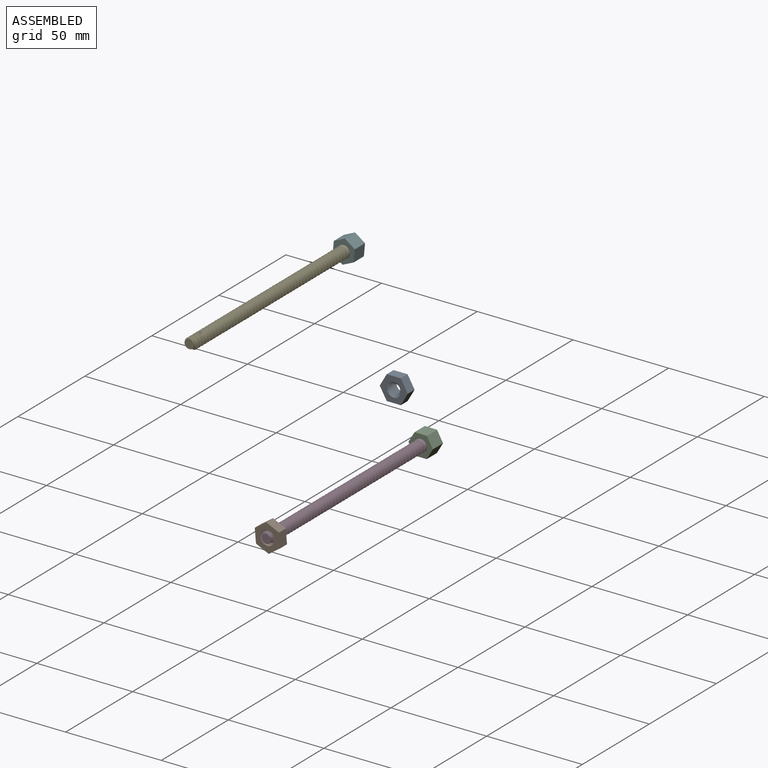
[diagram: assembled view]
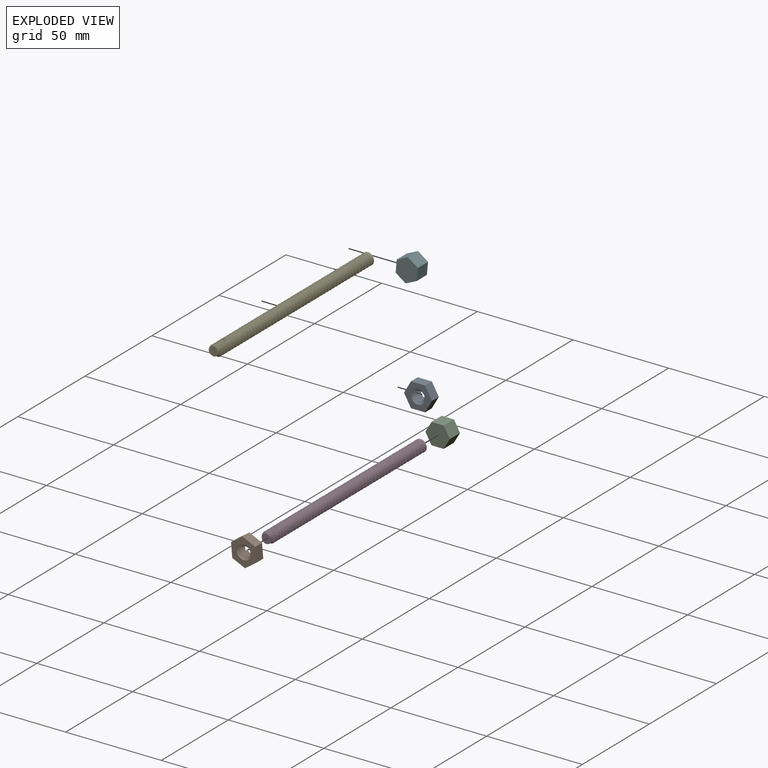
[diagram: exploded view]
GUIDED TOUR — MATED ASSEMBLY (Onshape document 5558fa52ef1e7a628afe3b0c, AutoMate assembly 5558fa52ef1e7a628afe3b0c_bb2a575c67ffff905aa52da0_493e388149c640339e13a3b0_default)

This assembly has 6 components, labeled P0..P5 below (a component is one placed occurrence of a part; the same part can appear more than once), held together by 3 mates. A mate is a constraint between two components; its type names the relative motion it leaves free:
  CYLINDRICAL — leaves both rotation about and translation along the listed axis free,
  FASTENED — locks the two components together rigidly (no relative motion).
Axis/direction vectors are unit vectors and 'through' points are millimeter coordinates, both in the assembly's world frame.

MATES
  1. CYLINDRICAL "Cylindrical 1": P3 <-> P1, axis (0.000, -1.000, 0.000) through (-28.22, -59.02, -57.03) mm
  2. FASTENED "Fastened 1": P2 <-> P3, direction (0.000, 1.000, 0.000) through (-28.22, 55.28, -57.03) mm
  3. FASTENED "Fastened 2": P4 <-> P5, direction (0.000, 1.000, 0.000) through (-10.07, -28.03, 71.27) mm

ASSEMBLY ORDER
  1. P1 — the base component [order verified]
  2. P3 [order verified]
  3. P4 [order verified]
  4. P5 [order verified]
  5. P0 [order verified]
  6. P2 [order verified]
(P3 verified with a relaxed clearance tolerance: the source model stores slight part interference there.)
Order-tag legend:
  [order verified] — this step's position reverses a verified removal order: the component was checked to insert without passing through the ones already placed.

Of the 6 components, 2 carry the full construction recipe — the FeatureScript program that regenerates the part's solid from scratch; the rest are supplied as boundary geometry only.
Each toured component is shown spotlighted twice — in the assembled view, then in the exploded view, where a leader line traces a displaced component back to its assembled socket (saturated green if recipe-attached, orange if geometry-only; every other component desaturated gray) — followed by its recipe or geometry summary and the mates that hold it.
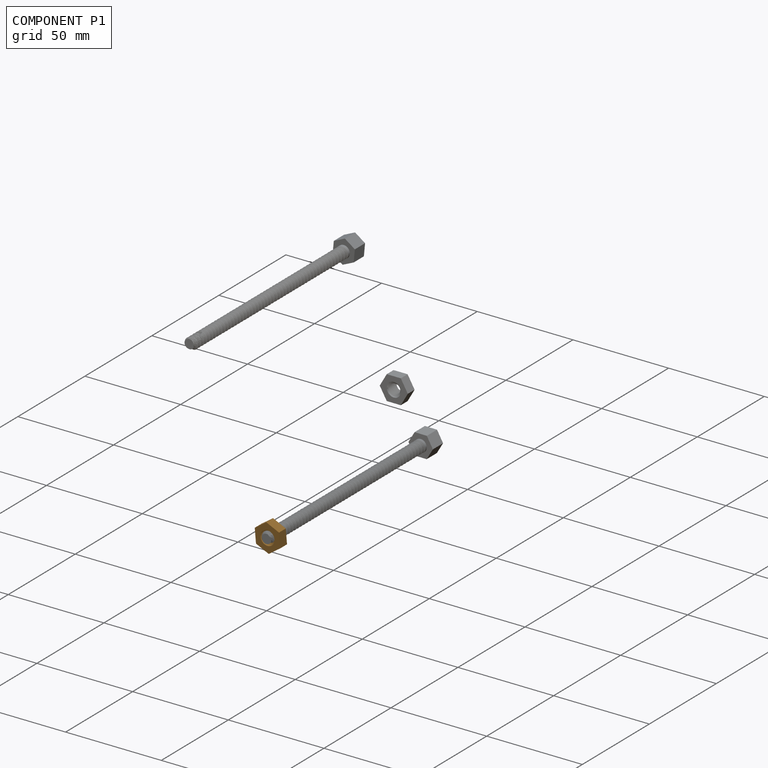
[diagram: component P1 — assembled]
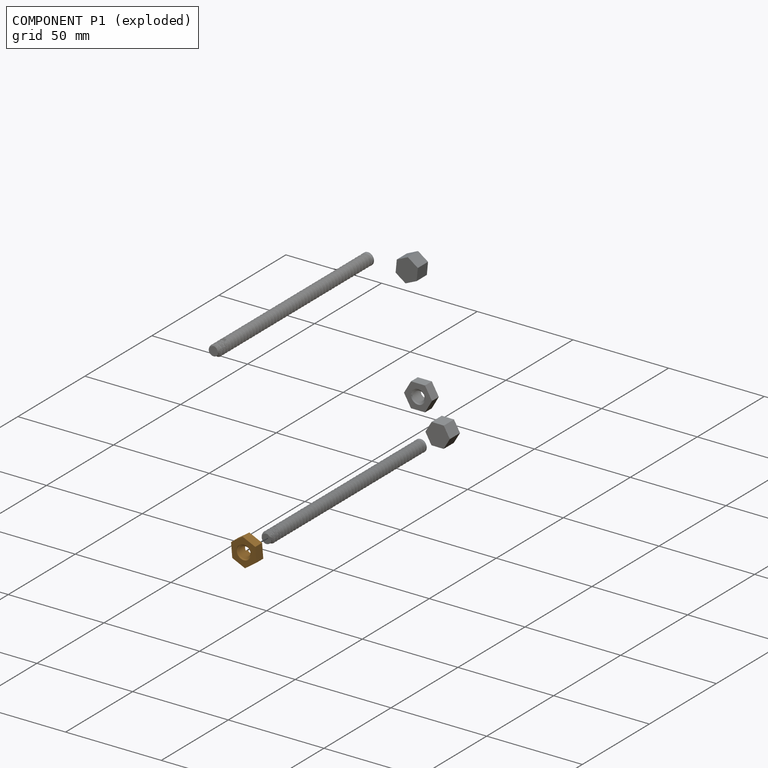
[diagram: component P1 — exploded]
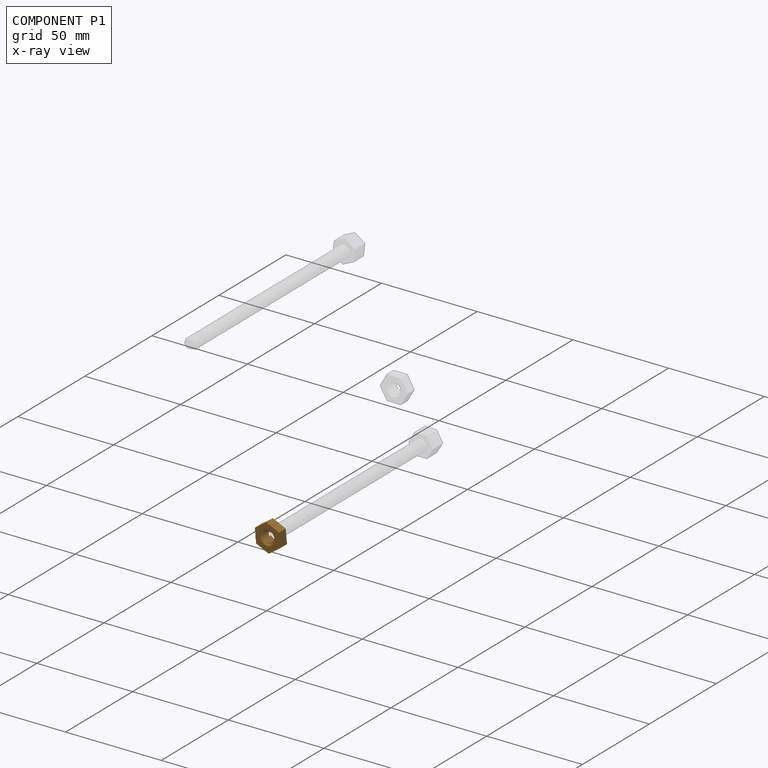
[diagram: component P1 — x-ray view]
COMPONENT P1 — geometry summary (no construction recipe available for this part):
  bounding box: 14.7 x 12.7 x 6.4 mm
  B-rep topology: 1 solid, 16 faces, 76 edges
  volume: 557 mm^3 (47% of its bounding box)
Held by: CYLINDRICAL mate "Cylindrical 1" to P3.
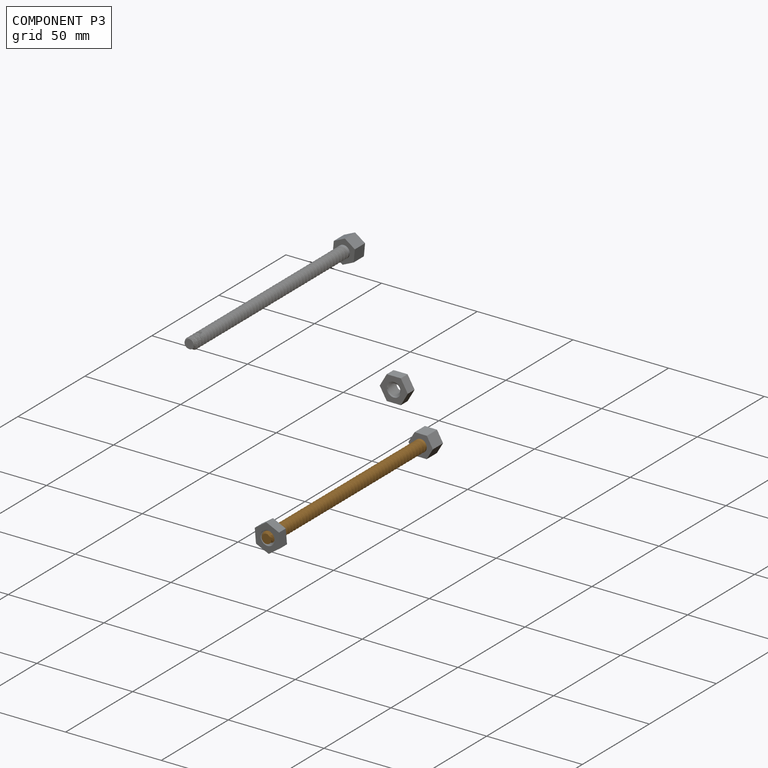
[diagram: component P3 — assembled]
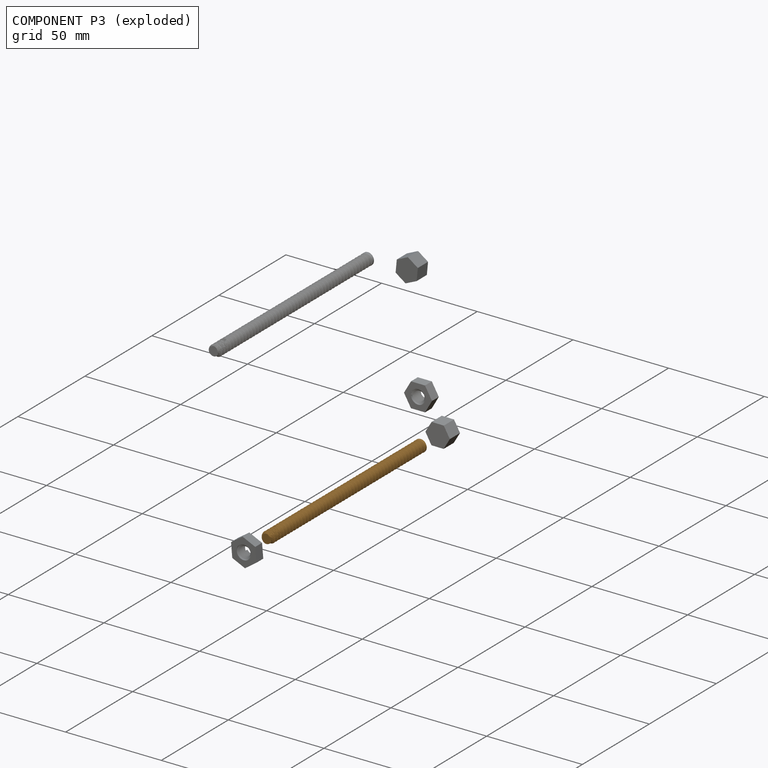
[diagram: component P3 — exploded]
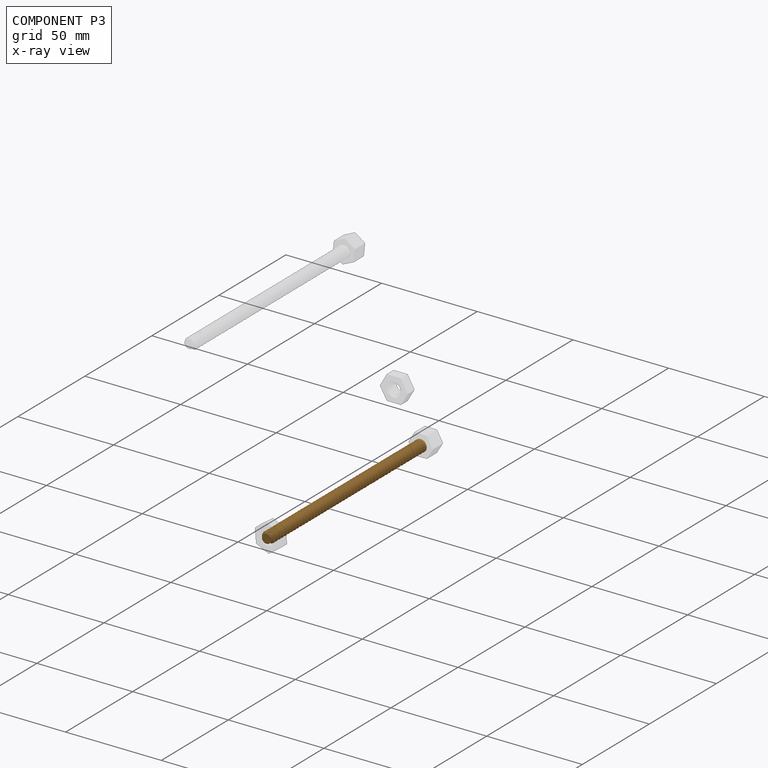
[diagram: component P3 — x-ray view]
COMPONENT P3 — geometry summary (no construction recipe available for this part):
  bounding box: 115.6 x 7.3 x 6.4 mm
  B-rep topology: 1 solid, 6 faces, 20 edges
  volume: 1098 mm^3 (20% of its bounding box)
  symmetry: revolution-symmetric about the y axis through its bounding-box center
Held by: CYLINDRICAL mate "Cylindrical 1" to P1; FASTENED mate "Fastened 1" to P2.
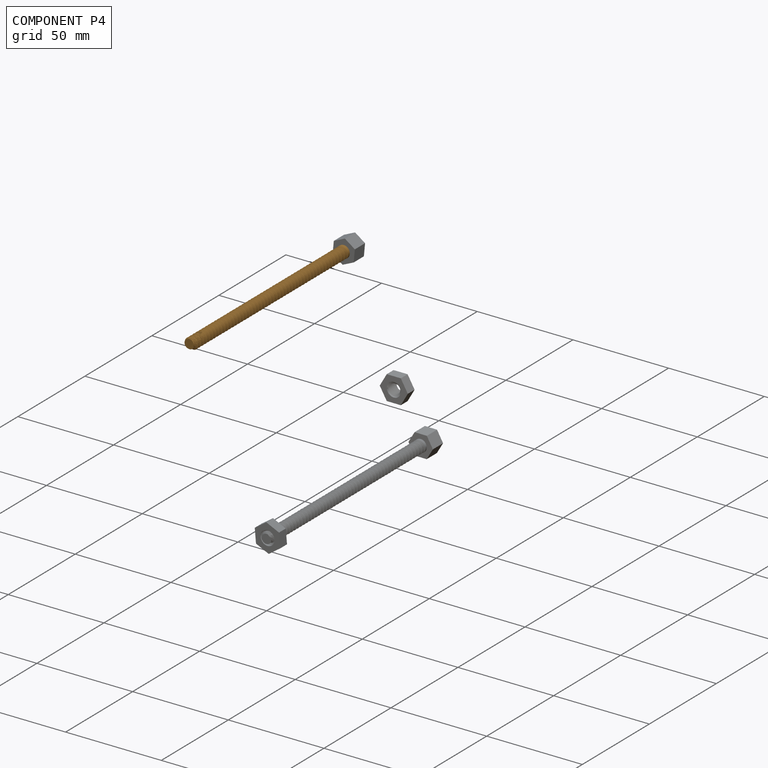
[diagram: component P4 — assembled]
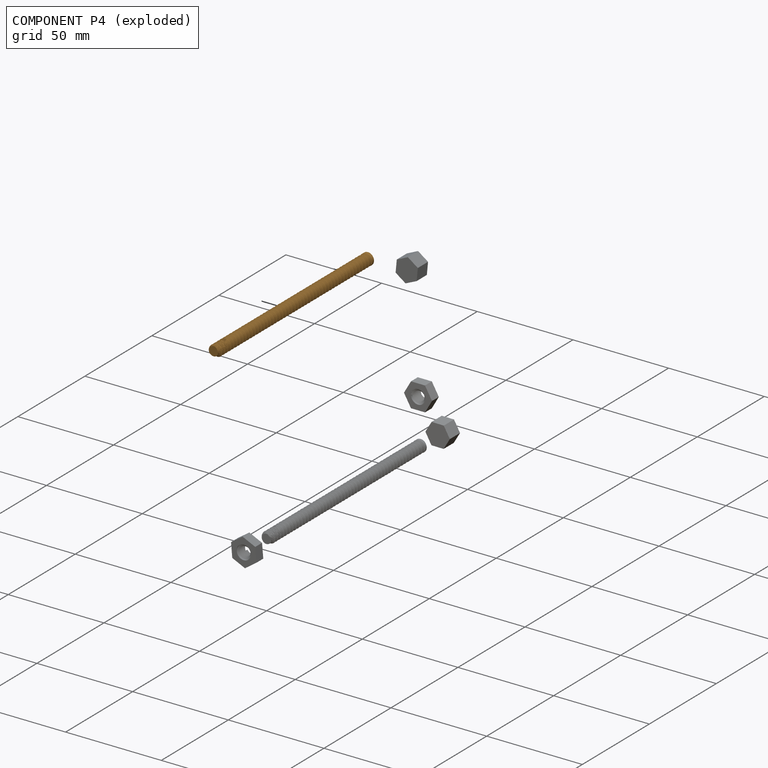
[diagram: component P4 — exploded]
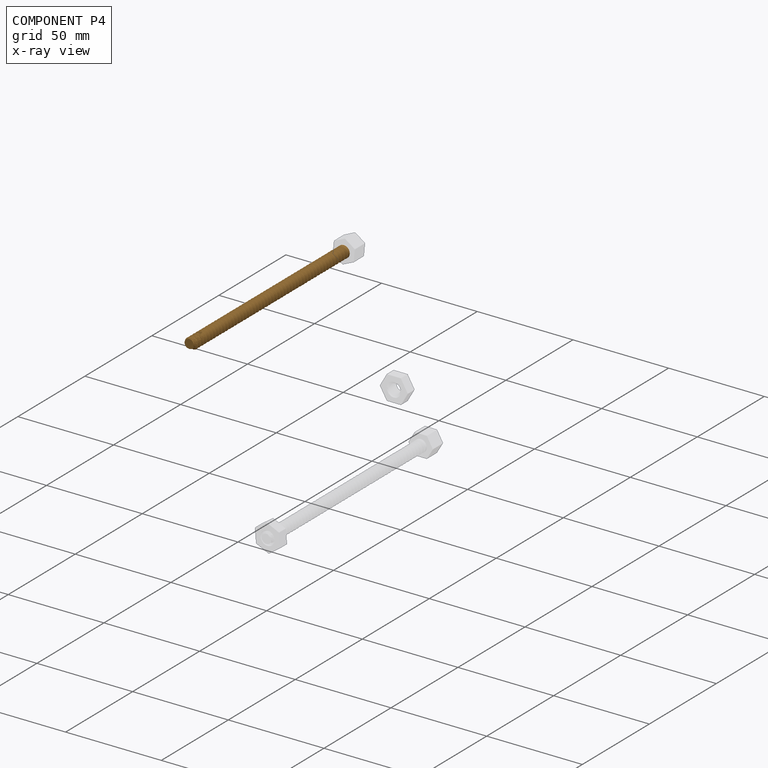
[diagram: component P4 — x-ray view]
COMPONENT P4 — geometry summary (no construction recipe available for this part):
  bounding box: 115.6 x 7.3 x 6.4 mm
  B-rep topology: 1 solid, 6 faces, 20 edges
  volume: 1098 mm^3 (20% of its bounding box)
  symmetry: revolution-symmetric about the y axis through its bounding-box center
Held by: FASTENED mate "Fastened 2" to P5.
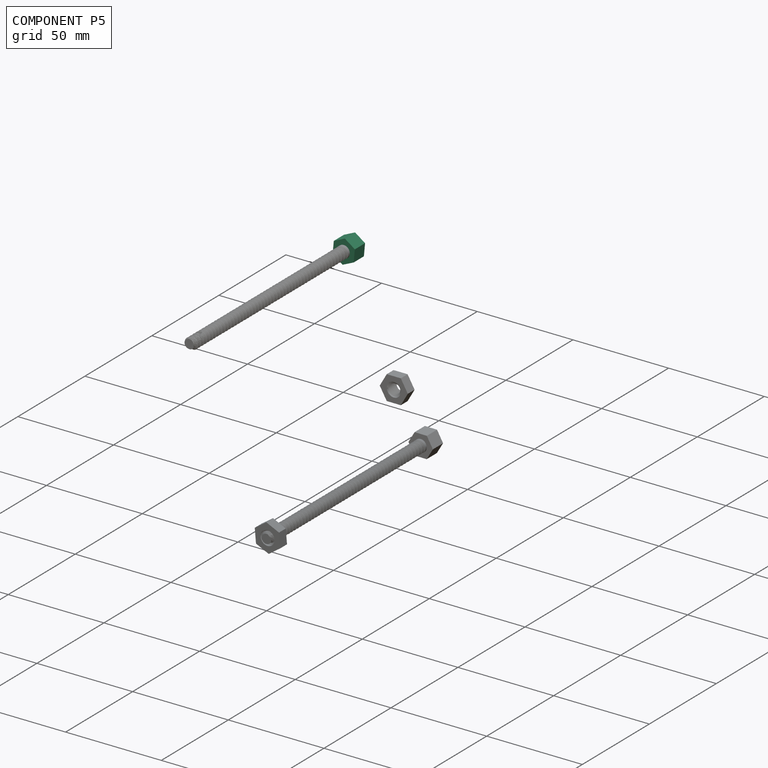
[diagram: component P5 — assembled]
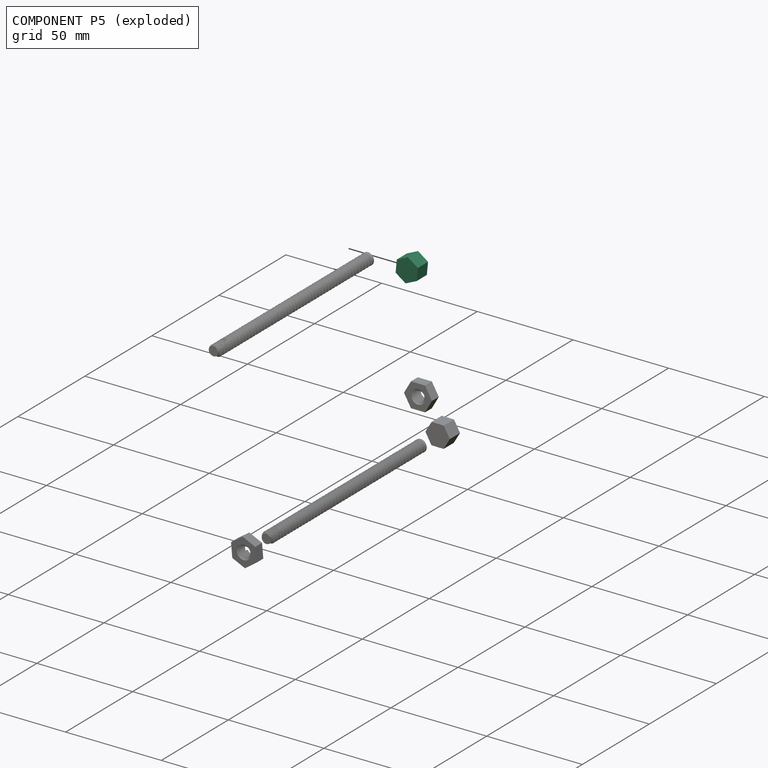
[diagram: component P5 — exploded]
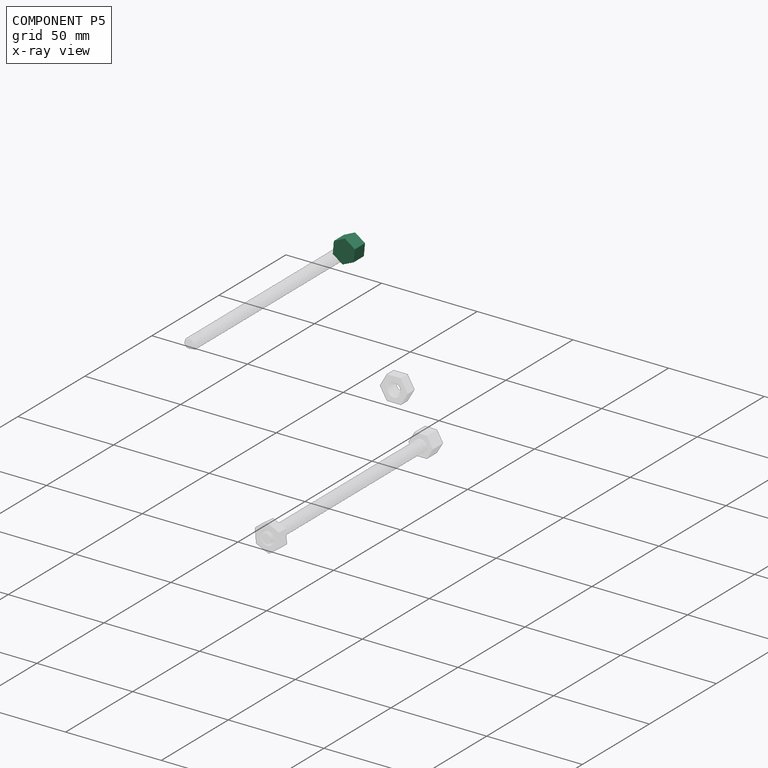
[diagram: component P5 — x-ray view]
COMPONENT P5 — same part as P2 (CADFS 00278169); its construction recipe is shown at P2.
Held by: FASTENED mate "Fastened 2" to P4.
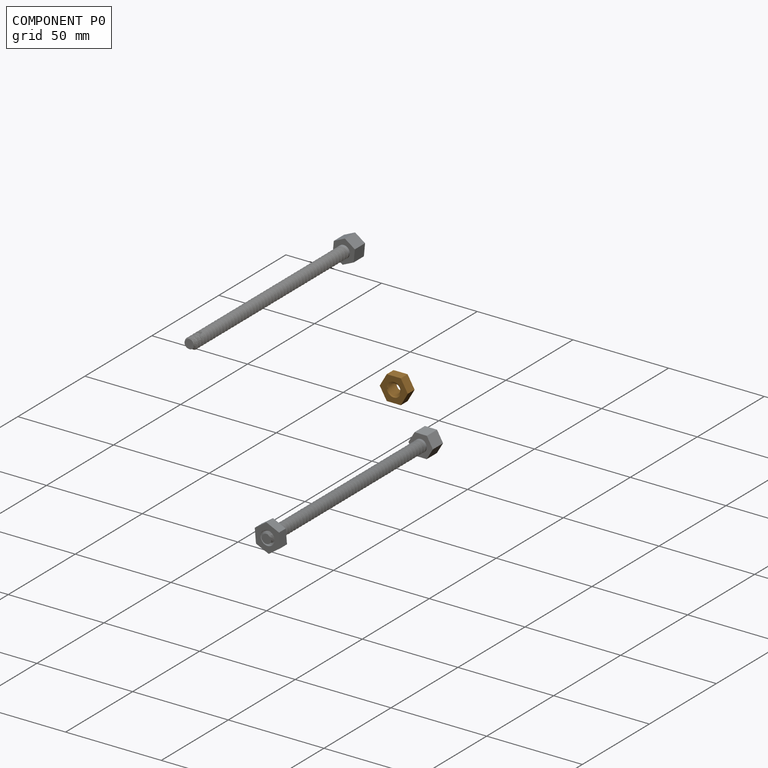
[diagram: component P0 — assembled]
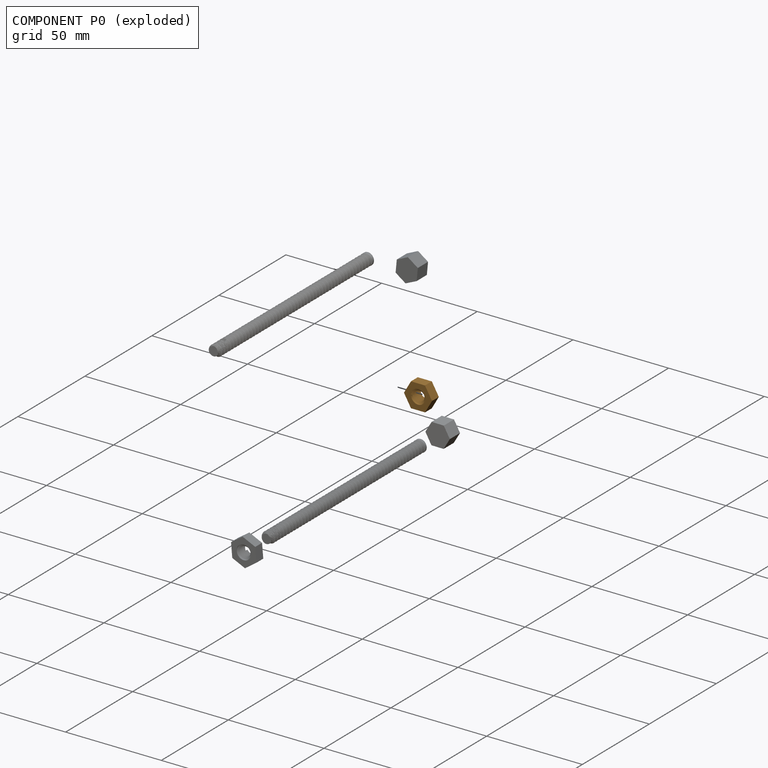
[diagram: component P0 — exploded]
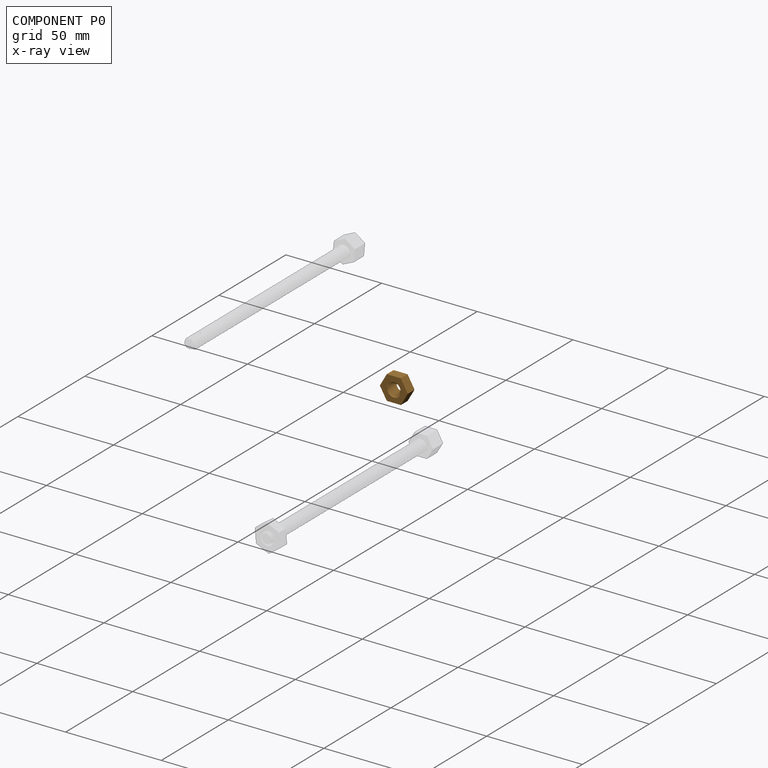
[diagram: component P0 — x-ray view]
COMPONENT P0 — geometry summary (no construction recipe available for this part):
  bounding box: 14.7 x 12.7 x 6.4 mm
  B-rep topology: 1 solid, 16 faces, 76 edges
  volume: 557 mm^3 (47% of its bounding box)
Held by: no mates (free).
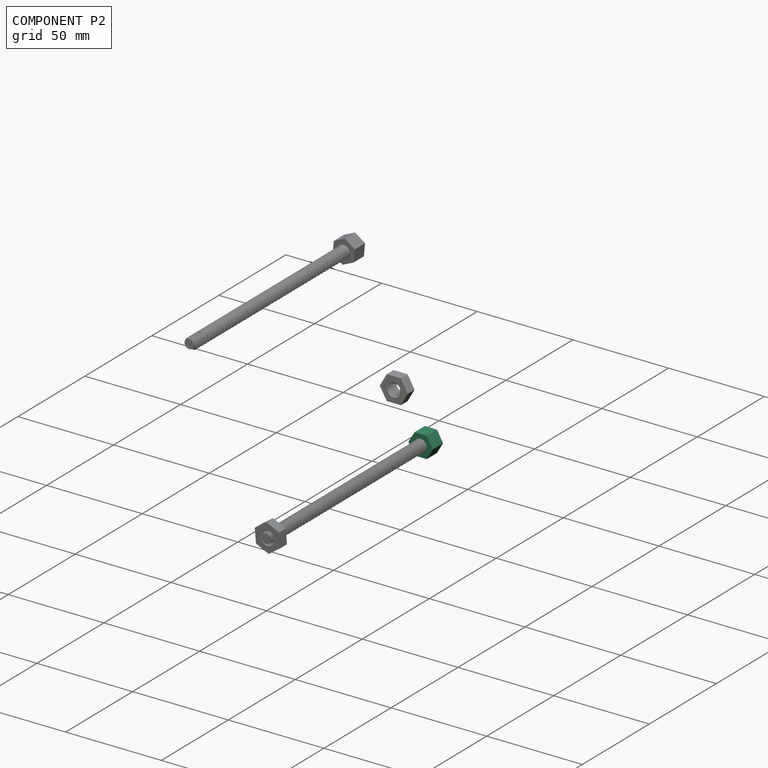
[diagram: component P2 — assembled]
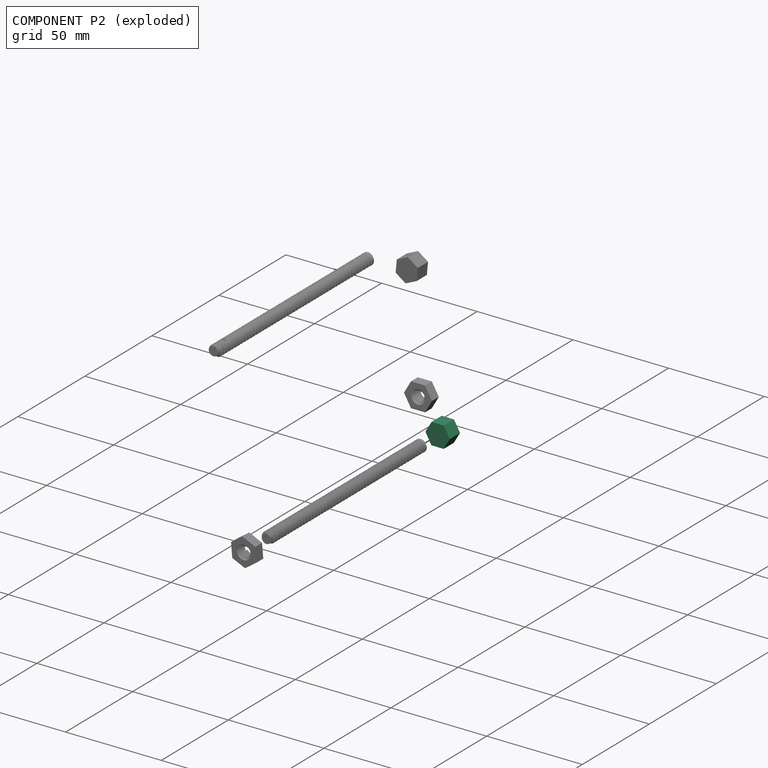
[diagram: component P2 — exploded]
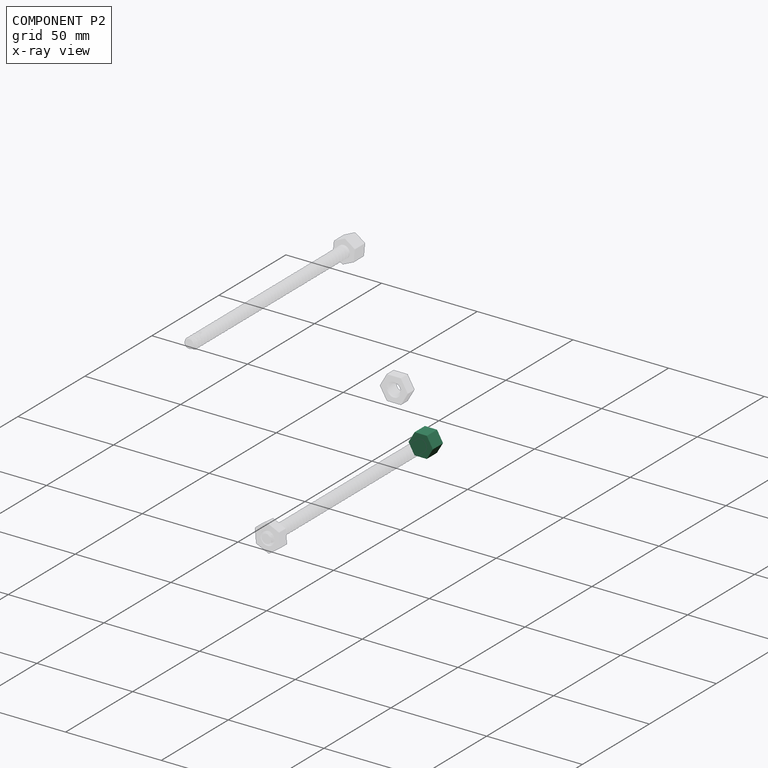
[diagram: component P2 — x-ray view]
COMPONENT P2 — recipe-attached (CADFS 00278169, mesh-verified: the recipe's output STEP matches this component's geometry to below the mesh-comparison resolution (tessellation chordal tolerance ~0.0282 mm)).
Held by: FASTENED mate "Fastened 1" to P3.
Construction recipe (FeatureScript — the CAD program that rebuilds this solid; sketch coordinates are in the units given by the * unit suffixes, e.g. mm):

FeatureScript 1511;
import(path : "onshape/std/geometry.fs", version : "1511.0");
import(path : "onshape/std/common.fs", version : "1511.0");
const mm = millimeter;
const VERTEX = EntityType.VERTEX;
const EDGE = EntityType.EDGE;
const FACE = EntityType.FACE;
const BODY = EntityType.BODY;
function v(x, y){return vector(x, y);}
function OD(order){return orderDisambiguation(order);}
function OSD(set){return originalSetDisambiguation(set);}
function TD(topology){return topologyDisambiguation(topology);}
function TDD(query){return trueDependencyDisambiguation(query);}
function sQuery(a, b, c) {return sketchEntityQuery(a, b, c);}

annotation { "Feature Type Name" : "Feature", "Feature Type Description" : "" }
export const myFeature = defineFeature(function(context is Context, id is Id, definition is map)
    precondition{}
    {
        {
            var Q0;
            Q0=qCreatedBy(makeId("Front.planeOp"),FACE);
            var sketch = newSketch(context, id + "F1", { "sketchPlane" : qUnion([Q0])});
            skCircle(sketch, "E0.cCircle", {"center": v(0, 0) * mm, "radius": 6.38 * mm, "construction": true});
            skLineSegment(sketch, "E0.0", {"start": v(5.2, -3.7) * mm, "end": v(-0.61, -6.35) * mm});
            skLineSegment(sketch, "E0.1", {"start": v(-0.61, -6.35) * mm, "end": v(-5.8, -2.64) * mm});
            skLineSegment(sketch, "E0.2", {"start": v(-5.8, -2.64) * mm, "end": v(-5.2, 3.7) * mm});
            skLineSegment(sketch, "E0.3", {"start": v(-5.2, 3.7) * mm, "end": v(0.61, 6.35) * mm});
            skLineSegment(sketch, "E0.4", {"start": v(0.61, 6.35) * mm, "end": v(5.8, 2.64) * mm});
            skLineSegment(sketch, "E0.5", {"start": v(5.8, 2.64) * mm, "end": v(5.2, -3.7) * mm});
            skSolve(sketch);
        }
        {
            var Q0;
            Q0=makeQuery(id+"F1.imprint","IMPRINT",FACE,{"disambiguationData":[TD([[makeQuery(id+"F1.imprint","IMPRINT",EDGE,{"derivedFrom":sQuery(id+"F1.wireOp",EDGE,"E0.0")}),-1.0]])]});
            extrude(context, id + "F0", {"entities" : qUnion([Q0]), "depth" : 7.61 * mm});
        }
    });
PROVENANCE & LICENSES
Assembly (occurrences, transforms, mates, per-part STEP geometry): AutoMate dataset, Zenodo record 7776208, CC0.
Construction recipes: CADFS (HuggingFace VladPyatov/CADFS, CC-BY-4.0, layered over the ABC dataset), FeatureScript reconstruction programs keyed by ABC model id.
Join: ABC meta listings map ABC model id -> Onshape documentId; within a shared document, parts are matched by geometric signature (bounding-box dims + volume at 0.1% relative tolerance, exact B-rep face/solid counts).
Verification: 2 of this assembly's 6 components carry a recipe attachment, and every attachment is mesh-verified: the CADFS STEP and the AutoMate member STEP were compared as meshes in their shared local frame (symmetric sampled-point-to-mesh distance); worst across the 2 attachments: below the mesh-comparison resolution (tessellation chordal tolerance ~0.0282 mm) on a 19 mm part.
Renders: orthographic iso camera (az 35 / el 25); the floor grid conveys scale (grid pitch printed in each image; no ruler). In the exploded view each component is displaced by its stored offset vector: the offsets alone carry the explosion direction (mate normal/axis signs are not orientation cues and do not encode it), and separation distances are assigned per mate-chain, not proportionally to assembly-order depth.
